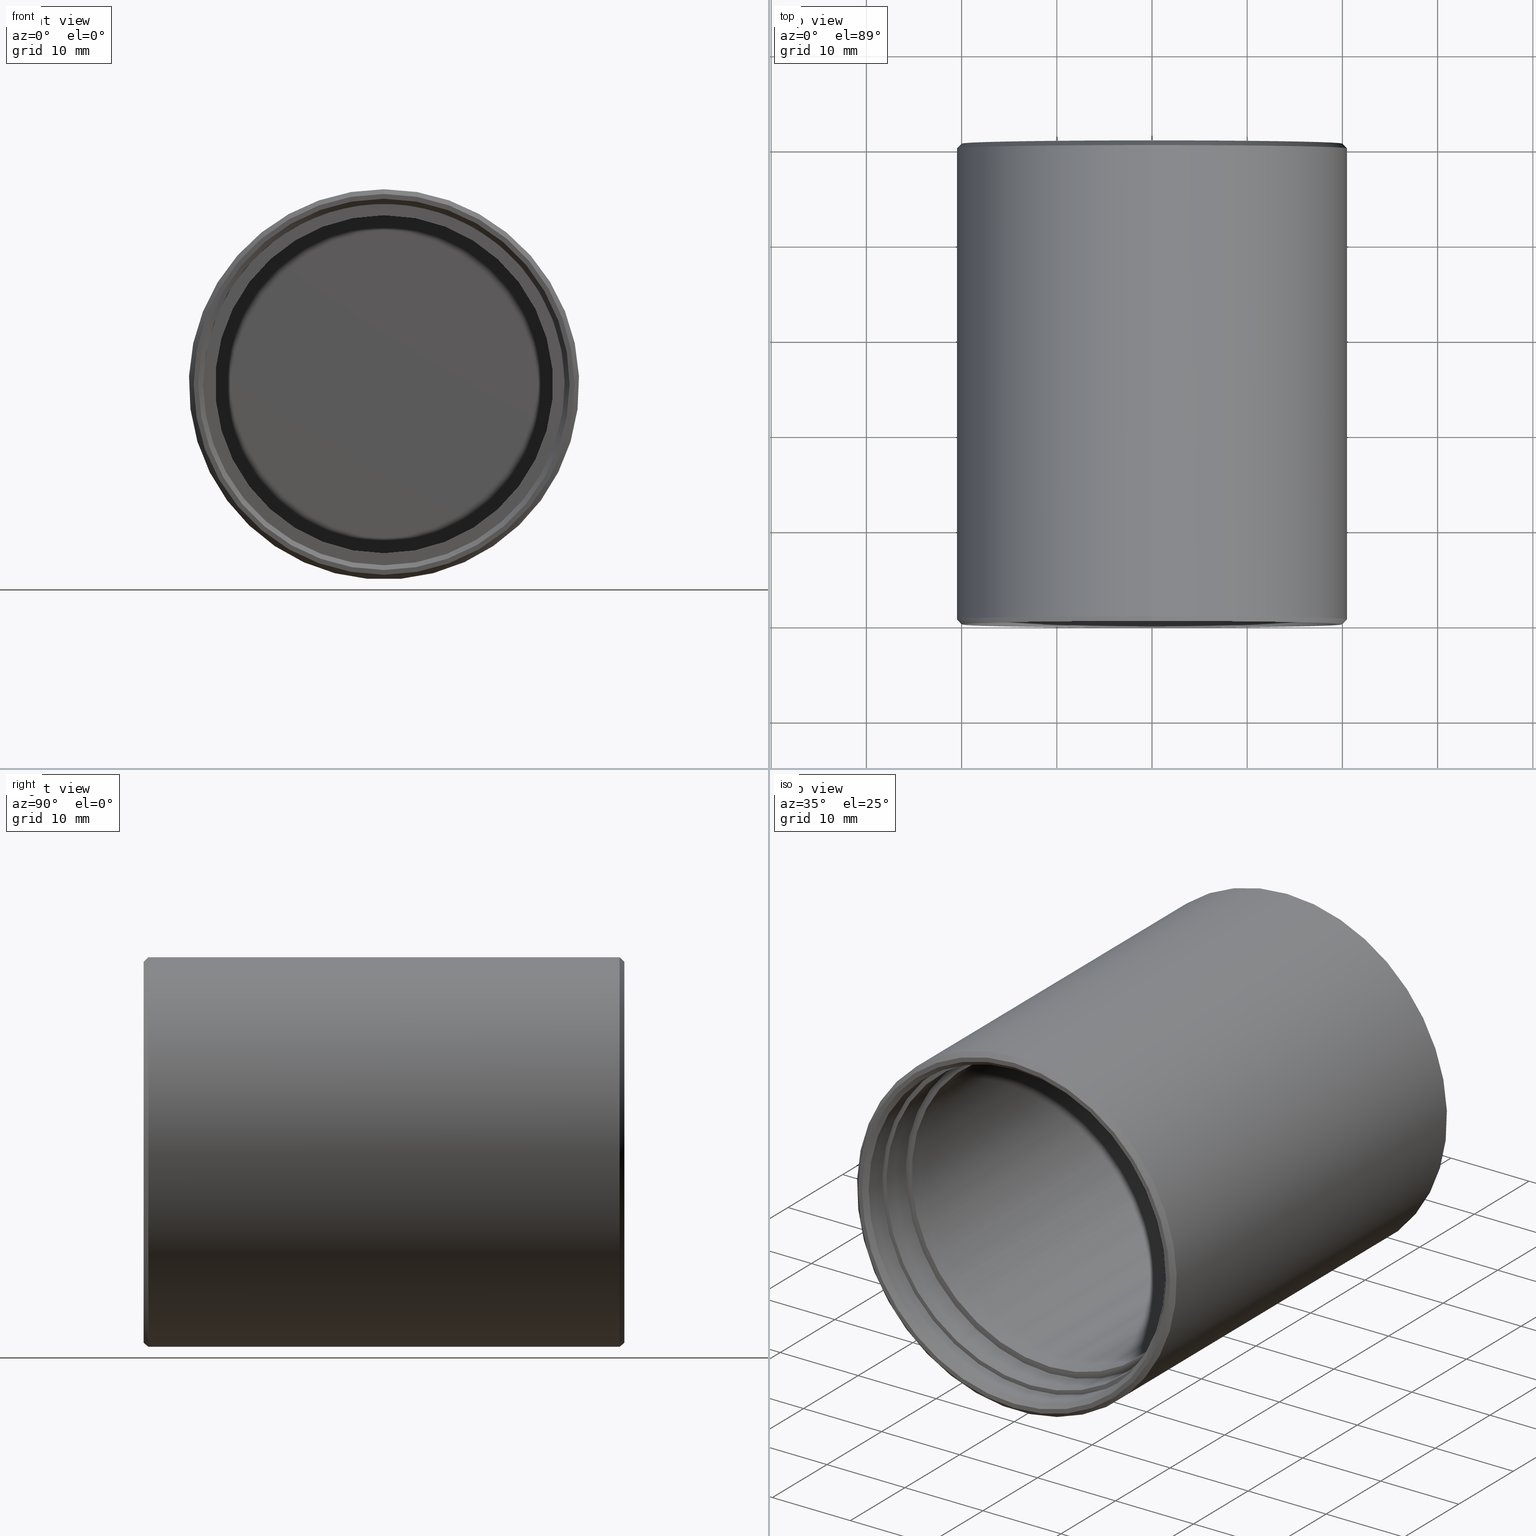
[diagram: canonical four-view strip — front | top / right | iso, engineering-drawing reading convention]
A machine part, canonical four-view strip (front | top / right | iso — engineering-drawing reading convention). The complete STEP part file that produces these views, byte-faithful:
ISO-10303-21;
HEADER;
FILE_DESCRIPTION (( 'STEP AP203' ),
    '1' );
FILE_NAME ('670035.STEP',
    '2025-05-23T04:04:11',
    ( 'Windows User' ),
    ( 'P R C' ),
    'SwSTEP 2.0',
    'SolidWorks 2020',
    '' );
FILE_SCHEMA (( 'CONFIG_CONTROL_DESIGN' ));
ENDSEC;

DATA;
#1 = DIRECTION ( 'NONE',  ( 0.000000000000000000, 0.000000000000000000, 1.000000000000000000 ) ) ;
#2 = AXIS2_PLACEMENT_3D ( 'NONE', #28, #254, #369 ) ;
#3 = CIRCLE ( 'NONE', #204, 19.49999999999997513 ) ;
#4 = DIRECTION ( 'NONE',  ( -0.000000000000000000, 1.000000000000000000, -0.000000000000000000 ) ) ;
#5 = DIRECTION ( 'NONE',  ( 0.000000000000000000, 0.000000000000000000, 1.000000000000000000 ) ) ;
#6 = EDGE_CURVE ( 'NONE', #265, #265, #223, .T. ) ;
#7 = CARTESIAN_POINT ( 'NONE',  ( 0.000000000000000000, 50.50000000000000000, 0.000000000000000000 ) ) ;
#8 = DIRECTION ( 'NONE',  ( -0.000000000000000000, -1.000000000000000000, -0.000000000000000000 ) ) ;
#9 = VERTEX_POINT ( 'NONE', #155 ) ;
#10 = EDGE_CURVE ( 'NONE', #127, #127, #332, .T. ) ;
#11 =( LENGTH_UNIT ( ) NAMED_UNIT ( * ) SI_UNIT ( .MILLI., .METRE. ) );
#12 = DESIGN_CONTEXT ( 'detailed design', #174, 'design' ) ;
#13 = ORIENTED_EDGE ( 'NONE', *, *, #10, .T. ) ;
#14 = APPLICATION_PROTOCOL_DEFINITION ( 'international standard', 'config_control_design', 1994, #174 ) ;
#15 = EDGE_LOOP ( 'NONE', ( #330 ) ) ;
#16 = AXIS2_PLACEMENT_3D ( 'NONE', #253, #307, #219 ) ;
#17 = CARTESIAN_POINT ( 'NONE',  ( 0.000000000000000000, 50.50000000000000000, 19.42415911742159551 ) ) ;
#18 = PRODUCT_RELATED_PRODUCT_CATEGORY ( 'detail', '', ( #375 ) ) ;
#19 = CARTESIAN_POINT ( 'NONE',  ( 0.000000000000000000, 0.000000000000000000, 20.00000000000000355 ) ) ;
#20 = EDGE_LOOP ( 'NONE', ( #22 ) ) ;
#21 = DATE_AND_TIME ( #24, #115 ) ;
#22 = ORIENTED_EDGE ( 'NONE', *, *, #214, .T. ) ;
#23 = CIRCLE ( 'NONE', #324, 20.50000000000000000 ) ;
#24 = CALENDAR_DATE ( 2025, 23, 5 ) ;
#25 = CC_DESIGN_DATE_AND_TIME_ASSIGNMENT ( #21, #228, ( #68 ) ) ;
#26 = PLANE ( 'NONE',  #203 ) ;
#27 = CALENDAR_DATE ( 2025, 23, 5 ) ;
#28 = CARTESIAN_POINT ( 'NONE',  ( 0.000000000000000000, 46.48000000000000398, 0.000000000000000000 ) ) ;
#29 = DIRECTION ( 'NONE',  ( 0.000000000000000000, -1.000000000000000000, 0.000000000000000000 ) ) ;
#30 = CIRCLE ( 'NONE', #264, 18.50000000000000000 ) ;
#31 = AXIS2_PLACEMENT_3D ( 'NONE', #124, #205, #151 ) ;
#32 = CARTESIAN_POINT ( 'NONE',  ( 0.000000000000000000, 3.000000000000000000, 0.000000000000000000 ) ) ;
#33 = FACE_BOUND ( 'NONE', #334, .T. ) ;
#34 = CYLINDRICAL_SURFACE ( 'NONE', #240, 17.74999999999999645 ) ;
#35 = AXIS2_PLACEMENT_3D ( 'NONE', #224, #340, #86 ) ;
#36 = CARTESIAN_POINT ( 'NONE',  ( 0.000000000000000000, 0.5000000000000004441, 0.000000000000000000 ) ) ;
#37 = ADVANCED_FACE ( 'NONE', ( #81, #285 ), #145, .T. ) ;
#38 = CARTESIAN_POINT ( 'NONE',  ( 0.000000000000000000, 0.4999999999999831246, 0.000000000000000000 ) ) ;
#39 = DIRECTION ( 'NONE',  ( 0.000000000000000000, 0.000000000000000000, -1.000000000000000000 ) ) ;
#40 = ADVANCED_FACE ( 'NONE', ( #33, #192 ), #194, .T. ) ;
#41 = DIRECTION ( 'NONE',  ( 0.000000000000000000, 0.000000000000000000, 1.000000000000000000 ) ) ;
#42 = LOCAL_TIME ( 12, 4, 11.00000000000000000, #221 ) ;
#43 = CARTESIAN_POINT ( 'NONE',  ( 0.000000000000000000, 0.000000000000000000, 19.49999999999997513 ) ) ;
#44 = ORIENTED_EDGE ( 'NONE', *, *, #359, .T. ) ;
#45 = PERSON_AND_ORGANIZATION ( #263, #306 ) ;
#46 = ORIENTED_EDGE ( 'NONE', *, *, #6, .T. ) ;
#47 = APPLICATION_CONTEXT ( 'configuration controlled 3d designs of mechanical parts and assemblies' ) ;
#48 = CC_DESIGN_APPROVAL ( #220, ( #84 ) ) ;
#49 = VERTEX_POINT ( 'NONE', #245 ) ;
#50 = EDGE_LOOP ( 'NONE', ( #215 ) ) ;
#51 = SECURITY_CLASSIFICATION_LEVEL ( 'unclassified' ) ;
#52 = EDGE_LOOP ( 'NONE', ( #156 ) ) ;
#53 = EDGE_CURVE ( 'NONE', #362, #362, #278, .T. ) ;
#54 = DIRECTION ( 'NONE',  ( 0.000000000000000000, -0.000000000000000000, 1.000000000000000000 ) ) ;
#55 = AXIS2_PLACEMENT_3D ( 'NONE', #283, #29, #142 ) ;
#56 = DIRECTION ( 'NONE',  ( 0.000000000000000000, -1.000000000000000000, 0.000000000000000000 ) ) ;
#57 = CARTESIAN_POINT ( 'NONE',  ( 0.000000000000000000, 6.580000000000000959, 0.000000000000000000 ) ) ;
#58 = ADVANCED_FACE ( 'NONE', ( #90, #147 ), #311, .F. ) ;
#59 = CARTESIAN_POINT ( 'NONE',  ( 0.000000000000000000, 50.50000000000000000, 0.000000000000000000 ) ) ;
#60 = AXIS2_PLACEMENT_3D ( 'NONE', #59, #373, #117 ) ;
#61 = DIRECTION ( 'NONE',  ( 0.000000000000000000, 1.000000000000000000, 0.000000000000000000 ) ) ;
#62 = DIRECTION ( 'NONE',  ( 0.000000000000000000, 1.000000000000000000, 0.000000000000000000 ) ) ;
#63 = ADVANCED_FACE ( 'NONE', ( #280, #169 ), #26, .T. ) ;
#64 = DIRECTION ( 'NONE',  ( -0.000000000000000000, -1.000000000000000000, -0.000000000000000000 ) ) ;
#65 = CONICAL_SURFACE ( 'NONE', #258, 18.99999999999999645, 0.7853981633974447263 ) ;
#66 = FACE_OUTER_BOUND ( 'NONE', #106, .T. ) ;
#67 = DIRECTION ( 'NONE',  ( 0.000000000000000000, 0.000000000000000000, -1.000000000000000000 ) ) ;
#68 = PRODUCT_DEFINITION ( 'δ֪', '', #198, #12 ) ;
#69 = DIRECTION ( 'NONE',  ( 0.000000000000000000, -1.000000000000000000, 0.000000000000000000 ) ) ;
#70 = AXIS2_PLACEMENT_3D ( 'NONE', #110, #229, #139 ) ;
#71 = AXIS2_PLACEMENT_3D ( 'NONE', #36, #4, #262 ) ;
#72 = ORIENTED_EDGE ( 'NONE', *, *, #344, .T. ) ;
#73 = DIRECTION ( 'NONE',  ( 0.000000000000000000, 0.000000000000000000, -1.000000000000000000 ) ) ;
#74 = EDGE_LOOP ( 'NONE', ( #299 ) ) ;
#75 = EDGE_CURVE ( 'NONE', #49, #49, #97, .T. ) ;
#76 = ORIENTED_EDGE ( 'NONE', *, *, #344, .F. ) ;
#77 = VERTEX_POINT ( 'NONE', #301 ) ;
#78 = EDGE_LOOP ( 'NONE', ( #361 ) ) ;
#79 = EDGE_LOOP ( 'NONE', ( #242 ) ) ;
#80 = APPROVAL ( #310, 'δָ��' ) ;
#81 = FACE_OUTER_BOUND ( 'NONE', #20, .T. ) ;
#82 = ORIENTED_EDGE ( 'NONE', *, *, #53, .T. ) ;
#83 = AXIS2_PLACEMENT_3D ( 'NONE', #113, #112, #222 ) ;
#84 = SECURITY_CLASSIFICATION ( '', '', #51 ) ;
#85 = COORDINATED_UNIVERSAL_TIME_OFFSET ( 8, 0, .AHEAD. ) ;
#86 = DIRECTION ( 'NONE',  ( 0.000000000000000000, 0.000000000000000000, -1.000000000000000000 ) ) ;
#87 = PERSON_AND_ORGANIZATION_ROLE ( 'classification_officer' ) ;
#88 = APPROVAL ( #241, 'δָ��' ) ;
#89 = CARTESIAN_POINT ( 'NONE',  ( 0.000000000000000000, 6.580000000000000959, 0.000000000000000000 ) ) ;
#90 = FACE_OUTER_BOUND ( 'NONE', #239, .T. ) ;
#91 = CIRCLE ( 'NONE', #83, 18.25000000000000000 ) ;
#92 = AXIS2_PLACEMENT_3D ( 'NONE', #291, #316, #1 ) ;
#93 = FACE_OUTER_BOUND ( 'NONE', #128, .T. ) ;
#94 = EDGE_CURVE ( 'NONE', #274, #274, #30, .T. ) ;
#95 = CARTESIAN_POINT ( 'NONE',  ( 0.000000000000000000, 3.000000000000000000, 0.000000000000000000 ) ) ;
#96 = DIRECTION ( 'NONE',  ( -0.000000000000000000, -1.000000000000000000, -0.000000000000000000 ) ) ;
#97 = CIRCLE ( 'NONE', #187, 18.99999999999999645 ) ;
#98 = DIRECTION ( 'NONE',  ( 0.000000000000000000, 0.000000000000000000, 1.000000000000000000 ) ) ;
#99 = DIRECTION ( 'NONE',  ( 0.000000000000000000, 0.000000000000000000, 1.000000000000000000 ) ) ;
#100 = VERTEX_POINT ( 'NONE', #238 ) ;
#101 = ORIENTED_EDGE ( 'NONE', *, *, #325, .T. ) ;
#102 = VERTEX_POINT ( 'NONE', #268 ) ;
#103 = EDGE_LOOP ( 'NONE', ( #157 ) ) ;
#104 = CC_DESIGN_PERSON_AND_ORGANIZATION_ASSIGNMENT ( #45, #279, ( #68 ) ) ;
#105 = APPROVAL_ROLE ( '' ) ;
#106 = EDGE_LOOP ( 'NONE', ( #101 ) ) ;
#107 = CARTESIAN_POINT ( 'NONE',  ( 0.000000000000000000, 50.00000000000000000, 20.50000000000000000 ) ) ;
#108 = EDGE_LOOP ( 'NONE', ( #371 ) ) ;
#109 = APPROVAL_STATUS ( 'not_yet_approved' ) ;
#110 = CARTESIAN_POINT ( 'NONE',  ( 0.000000000000000000, 50.50000000000000000, 0.000000000000000000 ) ) ;
#111 = CALENDAR_DATE ( 2025, 23, 5 ) ;
#112 = DIRECTION ( 'NONE',  ( -0.000000000000000000, -1.000000000000000000, -0.000000000000000000 ) ) ;
#113 = CARTESIAN_POINT ( 'NONE',  ( 0.000000000000000000, 49.48000000000000398, 0.000000000000000000 ) ) ;
#114 = AXIS2_PLACEMENT_3D ( 'NONE', #32, #197, #337 ) ;
#115 = LOCAL_TIME ( 12, 4, 11.00000000000000000, #135 ) ;
#116 = CC_DESIGN_DATE_AND_TIME_ASSIGNMENT ( #193, #366, ( #84 ) ) ;
#117 = DIRECTION ( 'NONE',  ( 0.000000000000000000, 0.000000000000000000, -1.000000000000000000 ) ) ;
#118 = DATE_AND_TIME ( #162, #356 ) ;
#119 = PLANE ( 'NONE',  #246 ) ;
#120 = CARTESIAN_POINT ( 'NONE',  ( 0.000000000000000000, 0.000000000000000000, 0.000000000000000000 ) ) ;
#121 = EDGE_CURVE ( 'NONE', #9, #9, #364, .T. ) ;
#122 = CIRCLE ( 'NONE', #313, 18.99999999999999645 ) ;
#123 = CARTESIAN_POINT ( 'NONE',  ( 0.000000000000000000, 50.50000000000000000, 0.000000000000000000 ) ) ;
#124 = CARTESIAN_POINT ( 'NONE',  ( 0.000000000000000000, 6.580000000000000959, 0.000000000000000000 ) ) ;
#125 = FACE_BOUND ( 'NONE', #273, .T. ) ;
#126 = FACE_BOUND ( 'NONE', #103, .T. ) ;
#127 = VERTEX_POINT ( 'NONE', #17 ) ;
#128 = EDGE_LOOP ( 'NONE', ( #44 ) ) ;
#129 = ADVANCED_FACE ( 'NONE', ( #374 ), #119, .T. ) ;
#130 = AXIS2_PLACEMENT_3D ( 'NONE', #305, #227, #54 ) ;
#131 = PERSON_AND_ORGANIZATION ( #263, #306 ) ;
#132 = VERTEX_POINT ( 'NONE', #107 ) ;
#133 = EDGE_LOOP ( 'NONE', ( #363 ) ) ;
#134 = CARTESIAN_POINT ( 'NONE',  ( 0.000000000000000000, 0.5000000000000004441, 20.50000000000000000 ) ) ;
#135 = COORDINATED_UNIVERSAL_TIME_OFFSET ( 8, 0, .AHEAD. ) ;
#136 = ORIENTED_EDGE ( 'NONE', *, *, #94, .F. ) ;
#137 = AXIS2_PLACEMENT_3D ( 'NONE', #7, #62, #41 ) ;
#138 = AXIS2_PLACEMENT_3D ( 'NONE', #352, #8, #99 ) ;
#139 = DIRECTION ( 'NONE',  ( 0.000000000000000000, 0.000000000000000000, 1.000000000000000000 ) ) ;
#140 = COORDINATED_UNIVERSAL_TIME_OFFSET ( 8, 0, .AHEAD. ) ;
#141 = DIRECTION ( 'NONE',  ( 0.000000000000000000, -1.000000000000000000, 0.000000000000000000 ) ) ;
#142 = DIRECTION ( 'NONE',  ( 0.000000000000000000, -0.000000000000000000, -1.000000000000000000 ) ) ;
#143 = ADVANCED_BREP_SHAPE_REPRESENTATION ( '670035', ( #272, #149 ), #154 ) ;
#144 = APPROVAL_DATE_TIME ( #118, #80 ) ;
#145 = CYLINDRICAL_SURFACE ( 'NONE', #60, 20.50000000000000000 ) ;
#146 = EDGE_CURVE ( 'NONE', #100, #100, #91, .T. ) ;
#147 = FACE_OUTER_BOUND ( 'NONE', #79, .T. ) ;
#148 = FACE_OUTER_BOUND ( 'NONE', #133, .T. ) ;
#149 = AXIS2_PLACEMENT_3D ( 'NONE', #208, #303, #322 ) ;
#150 = DIRECTION ( 'NONE',  ( 0.000000000000000000, 1.000000000000000000, 0.000000000000000000 ) ) ;
#151 = DIRECTION ( 'NONE',  ( 0.000000000000000000, 0.000000000000000000, -1.000000000000000000 ) ) ;
#152 = FACE_OUTER_BOUND ( 'NONE', #184, .T. ) ;
#153 = AXIS2_PLACEMENT_3D ( 'NONE', #342, #163, #343 ) ;
#154 =( GEOMETRIC_REPRESENTATION_CONTEXT ( 3 ) GLOBAL_UNCERTAINTY_ASSIGNED_CONTEXT ( ( #327 ) ) GLOBAL_UNIT_ASSIGNED_CONTEXT ( ( #11, #353, #190 ) ) REPRESENTATION_CONTEXT ( 'NONE', 'WORKASPACE' ) );
#155 = CARTESIAN_POINT ( 'NONE',  ( 0.000000000000000000, 46.48000000000000398, -17.74999999999999645 ) ) ;
#156 = ORIENTED_EDGE ( 'NONE', *, *, #121, .T. ) ;
#157 = ORIENTED_EDGE ( 'NONE', *, *, #180, .F. ) ;
#158 = LOCAL_TIME ( 12, 4, 11.00000000000000000, #140 ) ;
#159 = CARTESIAN_POINT ( 'NONE',  ( 0.000000000000000000, 3.000000000000000000, -18.50000000000000000 ) ) ;
#160 = PERSON_AND_ORGANIZATION ( #263, #306 ) ;
#161 = EDGE_LOOP ( 'NONE', ( #186 ) ) ;
#162 = CALENDAR_DATE ( 2025, 23, 5 ) ;
#163 = DIRECTION ( 'NONE',  ( -0.000000000000000000, 1.000000000000000000, -0.000000000000000000 ) ) ;
#164 = AXIS2_PLACEMENT_3D ( 'NONE', #95, #64, #175 ) ;
#165 = DIRECTION ( 'NONE',  ( 0.000000000000000000, 0.000000000000000000, -1.000000000000000000 ) ) ;
#166 = PERSON_AND_ORGANIZATION ( #263, #306 ) ;
#167 = PLANE ( 'NONE',  #55 ) ;
#168 = PERSON_AND_ORGANIZATION_ROLE ( 'design_supplier' ) ;
#169 = FACE_OUTER_BOUND ( 'NONE', #304, .T. ) ;
#170 = CC_DESIGN_APPROVAL ( #80, ( #198 ) ) ;
#171 = ADVANCED_FACE ( 'NONE', ( #281, #252 ), #257, .T. ) ;
#172 = DIRECTION ( 'NONE',  ( 0.000000000000000000, -0.000000000000000000, 1.000000000000000000 ) ) ;
#173 = DIRECTION ( 'NONE',  ( -0.000000000000000000, -1.000000000000000000, -0.000000000000000000 ) ) ;
#174 = APPLICATION_CONTEXT ( 'configuration controlled 3d designs of mechanical parts and assemblies' ) ;
#175 = DIRECTION ( 'NONE',  ( 0.000000000000000000, 0.000000000000000000, -1.000000000000000000 ) ) ;
#176 = FACE_OUTER_BOUND ( 'NONE', #217, .T. ) ;
#177 = ADVANCED_FACE ( 'NONE', ( #195, #309 ), #167, .T. ) ;
#178 = PLANE ( 'NONE',  #181 ) ;
#179 = CARTESIAN_POINT ( 'NONE',  ( 0.000000000000000000, 0.4999999999999831246, 0.000000000000000000 ) ) ;
#180 = EDGE_CURVE ( 'NONE', #183, #183, #216, .T. ) ;
#181 = AXIS2_PLACEMENT_3D ( 'NONE', #120, #259, #202 ) ;
#182 = EDGE_LOOP ( 'NONE', ( #72 ) ) ;
#183 = VERTEX_POINT ( 'NONE', #19 ) ;
#184 = EDGE_LOOP ( 'NONE', ( #46 ) ) ;
#185 = DATE_AND_TIME ( #329, #270 ) ;
#186 = ORIENTED_EDGE ( 'NONE', *, *, #325, .F. ) ;
#187 = AXIS2_PLACEMENT_3D ( 'NONE', #251, #141, #165 ) ;
#188 = CARTESIAN_POINT ( 'NONE',  ( 0.000000000000000000, 6.580000000000000959, -17.74999999999999645 ) ) ;
#189 = ORIENTED_EDGE ( 'NONE', *, *, #10, .F. ) ;
#190 =( NAMED_UNIT ( * ) SI_UNIT ( $, .STERADIAN. ) SOLID_ANGLE_UNIT ( ) );
#191 = APPROVAL_DATE_TIME ( #218, #220 ) ;
#192 = FACE_OUTER_BOUND ( 'NONE', #295, .T. ) ;
#193 = DATE_AND_TIME ( #111, #158 ) ;
#194 = PLANE ( 'NONE',  #130 ) ;
#195 = FACE_BOUND ( 'NONE', #15, .T. ) ;
#196 = DIRECTION ( 'NONE',  ( 0.000000000000000000, -0.000000000000000000, -1.000000000000000000 ) ) ;
#197 = DIRECTION ( 'NONE',  ( 0.000000000000000000, -1.000000000000000000, 0.000000000000000000 ) ) ;
#198 = PRODUCT_DEFINITION_FORMATION_WITH_SPECIFIED_SOURCE ( '�κ�', '', #375, .NOT_KNOWN. ) ;
#199 = DIRECTION ( 'NONE',  ( 0.000000000000000000, 0.000000000000000000, 1.000000000000000000 ) ) ;
#200 = FACE_OUTER_BOUND ( 'NONE', #108, .T. ) ;
#201 = CC_DESIGN_PERSON_AND_ORGANIZATION_ASSIGNMENT ( #250, #168, ( #198 ) ) ;
#202 = DIRECTION ( 'NONE',  ( 0.000000000000000000, -0.000000000000000000, 1.000000000000000000 ) ) ;
#203 = AXIS2_PLACEMENT_3D ( 'NONE', #57, #56, #196 ) ;
#204 = AXIS2_PLACEMENT_3D ( 'NONE', #288, #150, #5 ) ;
#205 = DIRECTION ( 'NONE',  ( 0.000000000000000000, -1.000000000000000000, 0.000000000000000000 ) ) ;
#206 = DIRECTION ( 'NONE',  ( -0.000000000000000000, 1.000000000000000000, -0.000000000000000000 ) ) ;
#207 = ADVANCED_FACE ( 'NONE', ( #349, #93 ), #34, .F. ) ;
#208 = CARTESIAN_POINT ( 'NONE',  ( 0.000000000000000000, 0.000000000000000000, 0.000000000000000000 ) ) ;
#209 = ORIENTED_EDGE ( 'NONE', *, *, #94, .T. ) ;
#210 = CLOSED_SHELL ( 'NONE', ( #37, #40, #248, #338, #177, #276, #63, #207, #58, #233, #370, #171, #269, #129, #315 ) ) ;
#211 = PERSON_AND_ORGANIZATION ( #263, #306 ) ;
#212 = COORDINATED_UNIVERSAL_TIME_OFFSET ( 8, 0, .AHEAD. ) ;
#213 = ORIENTED_EDGE ( 'NONE', *, *, #237, .F. ) ;
#214 = EDGE_CURVE ( 'NONE', #266, #266, #345, .T. ) ;
#215 = ORIENTED_EDGE ( 'NONE', *, *, #286, .T. ) ;
#216 = CIRCLE ( 'NONE', #138, 20.00000000000000355 ) ;
#217 = EDGE_LOOP ( 'NONE', ( #76 ) ) ;
#218 = DATE_AND_TIME ( #27, #42 ) ;
#219 = DIRECTION ( 'NONE',  ( 0.000000000000000000, 0.000000000000000000, -1.000000000000000000 ) ) ;
#220 = APPROVAL ( #109, 'δָ��' ) ;
#221 = COORDINATED_UNIVERSAL_TIME_OFFSET ( 8, 0, .AHEAD. ) ;
#222 = DIRECTION ( 'NONE',  ( 0.000000000000000000, 0.000000000000000000, 1.000000000000000000 ) ) ;
#223 = CIRCLE ( 'NONE', #114, 18.50000000000000000 ) ;
#224 = CARTESIAN_POINT ( 'NONE',  ( 0.000000000000000000, 50.50000000000000000, 0.000000000000000000 ) ) ;
#225 = AXIS2_PLACEMENT_3D ( 'NONE', #320, #173, #39 ) ;
#226 = APPROVAL_ROLE ( '' ) ;
#227 = DIRECTION ( 'NONE',  ( 0.000000000000000000, 1.000000000000000000, 0.000000000000000000 ) ) ;
#228 = DATE_TIME_ROLE ( 'creation_date' ) ;
#229 = DIRECTION ( 'NONE',  ( -0.000000000000000000, 1.000000000000000000, -0.000000000000000000 ) ) ;
#230 = PLANE ( 'NONE',  #231 ) ;
#231 = AXIS2_PLACEMENT_3D ( 'NONE', #350, #346, #318 ) ;
#232 = FACE_OUTER_BOUND ( 'NONE', #249, .T. ) ;
#233 = ADVANCED_FACE ( 'NONE', ( #126, #292 ), #347, .T. ) ;
#234 = CARTESIAN_POINT ( 'NONE',  ( 0.000000000000000000, 46.48000000000000398, 0.000000000000000000 ) ) ;
#235 = CYLINDRICAL_SURFACE ( 'NONE', #225, 18.50000000000000000 ) ;
#236 = FACE_BOUND ( 'NONE', #182, .T. ) ;
#237 = EDGE_CURVE ( 'NONE', #102, #102, #293, .T. ) ;
#238 = CARTESIAN_POINT ( 'NONE',  ( 0.000000000000000000, 49.48000000000000398, 18.25000000000000000 ) ) ;
#239 = EDGE_LOOP ( 'NONE', ( #82 ) ) ;
#240 = AXIS2_PLACEMENT_3D ( 'NONE', #234, #96, #67 ) ;
#241 = APPROVAL_STATUS ( 'not_yet_approved' ) ;
#242 = ORIENTED_EDGE ( 'NONE', *, *, #146, .T. ) ;
#243 = APPLICATION_PROTOCOL_DEFINITION ( 'international standard', 'config_control_design', 1994, #47 ) ;
#244 = ORIENTED_EDGE ( 'NONE', *, *, #53, .F. ) ;
#245 = CARTESIAN_POINT ( 'NONE',  ( 0.000000000000000000, 3.000000000000000000, -18.99999999999999645 ) ) ;
#246 = AXIS2_PLACEMENT_3D ( 'NONE', #312, #61, #172 ) ;
#247 = PERSON_AND_ORGANIZATION_ROLE ( 'creator' ) ;
#248 = ADVANCED_FACE ( 'NONE', ( #200, #236 ), #178, .F. ) ;
#249 = EDGE_LOOP ( 'NONE', ( #136 ) ) ;
#250 = PERSON_AND_ORGANIZATION ( #263, #306 ) ;
#251 = CARTESIAN_POINT ( 'NONE',  ( 0.000000000000000000, 3.000000000000000000, 0.000000000000000000 ) ) ;
#252 = FACE_BOUND ( 'NONE', #355, .T. ) ;
#253 = CARTESIAN_POINT ( 'NONE',  ( 0.000000000000000000, 64.48000000000000398, 0.000000000000000000 ) ) ;
#254 = DIRECTION ( 'NONE',  ( 0.000000000000000000, -1.000000000000000000, 0.000000000000000000 ) ) ;
#255 = FACE_OUTER_BOUND ( 'NONE', #328, .T. ) ;
#256 = DIRECTION ( 'NONE',  ( 0.000000000000000000, 0.000000000000000000, 1.000000000000000000 ) ) ;
#257 = CONICAL_SURFACE ( 'NONE', #35, 20.00000000000001776, 0.7853981633974309595 ) ;
#258 = AXIS2_PLACEMENT_3D ( 'NONE', #38, #260, #73 ) ;
#259 = DIRECTION ( 'NONE',  ( 0.000000000000000000, 1.000000000000000000, 0.000000000000000000 ) ) ;
#260 = DIRECTION ( 'NONE',  ( 0.000000000000000000, -1.000000000000000000, 0.000000000000000000 ) ) ;
#261 = CC_DESIGN_PERSON_AND_ORGANIZATION_ASSIGNMENT ( #282, #247, ( #198 ) ) ;
#262 = DIRECTION ( 'NONE',  ( 0.000000000000000000, 0.000000000000000000, 1.000000000000000000 ) ) ;
#263 = PERSON ( 'δָ��', 'δָ��', 'δָ��', ('δָ��'), ('δָ��'), ('δָ��') ) ;
#264 = AXIS2_PLACEMENT_3D ( 'NONE', #89, #284, #367 ) ;
#265 = VERTEX_POINT ( 'NONE', #159 ) ;
#266 = VERTEX_POINT ( 'NONE', #134 ) ;
#267 = EDGE_LOOP ( 'NONE', ( #336 ) ) ;
#268 = CARTESIAN_POINT ( 'NONE',  ( 0.000000000000000000, 50.50000000000000000, 20.00000000000001776 ) ) ;
#269 = ADVANCED_FACE ( 'NONE', ( #255, #125 ), #339, .F. ) ;
#270 = LOCAL_TIME ( 12, 4, 11.00000000000000000, #212 ) ;
#271 = CARTESIAN_POINT ( 'NONE',  ( 0.000000000000000000, 6.580000000000000959, -18.50000000000000000 ) ) ;
#272 = MANIFOLD_SOLID_BREP ( '͹̨-����2', #210 ) ;
#273 = EDGE_LOOP ( 'NONE', ( #244 ) ) ;
#274 = VERTEX_POINT ( 'NONE', #271 ) ;
#275 = ORIENTED_EDGE ( 'NONE', *, *, #214, .F. ) ;
#276 = ADVANCED_FACE ( 'NONE', ( #232, #152 ), #235, .F. ) ;
#277 = EDGE_LOOP ( 'NONE', ( #323 ) ) ;
#278 = CIRCLE ( 'NONE', #153, 18.25000000000000000 ) ;
#279 = PERSON_AND_ORGANIZATION_ROLE ( 'creator' ) ;
#280 = FACE_BOUND ( 'NONE', #297, .T. ) ;
#281 = FACE_OUTER_BOUND ( 'NONE', #277, .T. ) ;
#282 = PERSON_AND_ORGANIZATION ( #263, #306 ) ;
#283 = CARTESIAN_POINT ( 'NONE',  ( 0.000000000000000000, 3.000000000000000000, 0.000000000000000000 ) ) ;
#284 = DIRECTION ( 'NONE',  ( 0.000000000000000000, -1.000000000000000000, 0.000000000000000000 ) ) ;
#285 = FACE_OUTER_BOUND ( 'NONE', #50, .T. ) ;
#286 = EDGE_CURVE ( 'NONE', #132, #132, #23, .T. ) ;
#287 = DIRECTION ( 'NONE',  ( 0.000000000000000000, -1.000000000000000000, 0.000000000000000000 ) ) ;
#288 = CARTESIAN_POINT ( 'NONE',  ( 0.000000000000000000, 0.000000000000000000, 0.000000000000000000 ) ) ;
#289 = APPROVAL_PERSON_ORGANIZATION ( #160, #220, #226 ) ;
#290 = FACE_BOUND ( 'NONE', #161, .T. ) ;
#291 = CARTESIAN_POINT ( 'NONE',  ( 0.000000000000000000, 0.5000000000000004441, 0.000000000000000000 ) ) ;
#292 = FACE_OUTER_BOUND ( 'NONE', #331, .T. ) ;
#293 = CIRCLE ( 'NONE', #137, 20.00000000000001776 ) ;
#294 = MECHANICAL_CONTEXT ( 'NONE', #47, 'mechanical' ) ;
#295 = EDGE_LOOP ( 'NONE', ( #302 ) ) ;
#296 = VERTEX_POINT ( 'NONE', #188 ) ;
#297 = EDGE_LOOP ( 'NONE', ( #358 ) ) ;
#298 = APPROVAL_DATE_TIME ( #185, #88 ) ;
#299 = ORIENTED_EDGE ( 'NONE', *, *, #146, .F. ) ;
#300 = CC_DESIGN_APPROVAL ( #88, ( #68 ) ) ;
#301 = CARTESIAN_POINT ( 'NONE',  ( 0.000000000000000000, 0.4999999999999831246, 18.99999999999999645 ) ) ;
#302 = ORIENTED_EDGE ( 'NONE', *, *, #237, .T. ) ;
#303 = DIRECTION ( 'NONE',  ( 0.000000000000000000, 0.000000000000000000, 1.000000000000000000 ) ) ;
#304 = EDGE_LOOP ( 'NONE', ( #209 ) ) ;
#305 = CARTESIAN_POINT ( 'NONE',  ( 0.000000000000000000, 50.50000000000000000, 0.000000000000000000 ) ) ;
#306 = ORGANIZATION ( 'δָ��', 'δָ��', '' ) ;
#307 = DIRECTION ( 'NONE',  ( -0.000000000000000000, -1.000000000000000000, -0.000000000000000000 ) ) ;
#308 = CC_DESIGN_PERSON_AND_ORGANIZATION_ASSIGNMENT ( #211, #326, ( #375 ) ) ;
#309 = FACE_OUTER_BOUND ( 'NONE', #78, .T. ) ;
#310 = APPROVAL_STATUS ( 'not_yet_approved' ) ;
#311 = CYLINDRICAL_SURFACE ( 'NONE', #16, 18.25000000000000000 ) ;
#312 = CARTESIAN_POINT ( 'NONE',  ( 0.000000000000000000, 49.48000000000000398, 0.000000000000000000 ) ) ;
#313 = AXIS2_PLACEMENT_3D ( 'NONE', #179, #287, #98 ) ;
#314 = PRODUCT_DEFINITION_SHAPE ( 'NONE', 'NONE',  #68 ) ;
#315 = ADVANCED_FACE ( 'NONE', ( #321 ), #230, .F. ) ;
#316 = DIRECTION ( 'NONE',  ( -0.000000000000000000, 1.000000000000000000, -0.000000000000000000 ) ) ;
#317 = CARTESIAN_POINT ( 'NONE',  ( 0.000000000000000000, 50.00000000000000000, 0.000000000000000000 ) ) ;
#318 = DIRECTION ( 'NONE',  ( 0.000000000000000000, -0.000000000000000000, 1.000000000000000000 ) ) ;
#319 = APPROVAL_PERSON_ORGANIZATION ( #166, #80, #368 ) ;
#320 = CARTESIAN_POINT ( 'NONE',  ( 0.000000000000000000, 6.580000000000000959, 0.000000000000000000 ) ) ;
#321 = FACE_OUTER_BOUND ( 'NONE', #52, .T. ) ;
#322 = DIRECTION ( 'NONE',  ( 1.000000000000000000, 0.000000000000000000, 0.000000000000000000 ) ) ;
#323 = ORIENTED_EDGE ( 'NONE', *, *, #286, .F. ) ;
#324 = AXIS2_PLACEMENT_3D ( 'NONE', #317, #69, #256 ) ;
#325 = EDGE_CURVE ( 'NONE', #77, #77, #122, .T. ) ;
#326 = PERSON_AND_ORGANIZATION_ROLE ( 'design_owner' ) ;
#327 = UNCERTAINTY_MEASURE_WITH_UNIT (LENGTH_MEASURE( 1.000000000000000082E-05 ), #11, 'distance_accuracy_value', 'NONE');
#328 = EDGE_LOOP ( 'NONE', ( #13 ) ) ;
#329 = CALENDAR_DATE ( 2025, 23, 5 ) ;
#330 = ORIENTED_EDGE ( 'NONE', *, *, #6, .F. ) ;
#331 = EDGE_LOOP ( 'NONE', ( #275 ) ) ;
#332 = CIRCLE ( 'NONE', #70, 19.42415911742159551 ) ;
#333 = AXIS2_PLACEMENT_3D ( 'NONE', #123, #206, #199 ) ;
#334 = EDGE_LOOP ( 'NONE', ( #189 ) ) ;
#335 = SHAPE_DEFINITION_REPRESENTATION ( #314, #143 ) ;
#336 = ORIENTED_EDGE ( 'NONE', *, *, #121, .F. ) ;
#337 = DIRECTION ( 'NONE',  ( 0.000000000000000000, 0.000000000000000000, -1.000000000000000000 ) ) ;
#338 = ADVANCED_FACE ( 'NONE', ( #66, #148 ), #348, .F. ) ;
#339 = CONICAL_SURFACE ( 'NONE', #333, 19.42415911742159551, 1.027321548206929558 ) ;
#340 = DIRECTION ( 'NONE',  ( 0.000000000000000000, -1.000000000000000000, 0.000000000000000000 ) ) ;
#341 = PERSON_AND_ORGANIZATION ( #263, #306 ) ;
#342 = CARTESIAN_POINT ( 'NONE',  ( 0.000000000000000000, 49.79061671342109463, 0.000000000000000000 ) ) ;
#343 = DIRECTION ( 'NONE',  ( 0.000000000000000000, 0.000000000000000000, 1.000000000000000000 ) ) ;
#344 = EDGE_CURVE ( 'NONE', #357, #357, #3, .T. ) ;
#345 = CIRCLE ( 'NONE', #71, 20.50000000000000000 ) ;
#346 = DIRECTION ( 'NONE',  ( 0.000000000000000000, 1.000000000000000000, 0.000000000000000000 ) ) ;
#347 = CONICAL_SURFACE ( 'NONE', #92, 20.50000000000000000, 0.7853981633974447263 ) ;
#348 = CYLINDRICAL_SURFACE ( 'NONE', #164, 18.99999999999999645 ) ;
#349 = FACE_OUTER_BOUND ( 'NONE', #267, .T. ) ;
#350 = CARTESIAN_POINT ( 'NONE',  ( 0.000000000000000000, 46.48000000000000398, 0.000000000000000000 ) ) ;
#351 = CIRCLE ( 'NONE', #31, 17.74999999999999645 ) ;
#352 = CARTESIAN_POINT ( 'NONE',  ( 0.000000000000000000, 0.000000000000000000, 0.000000000000000000 ) ) ;
#353 =( NAMED_UNIT ( * ) PLANE_ANGLE_UNIT ( ) SI_UNIT ( $, .RADIAN. ) );
#354 = CC_DESIGN_PERSON_AND_ORGANIZATION_ASSIGNMENT ( #341, #87, ( #84 ) ) ;
#355 = EDGE_LOOP ( 'NONE', ( #213 ) ) ;
#356 = LOCAL_TIME ( 12, 4, 11.00000000000000000, #85 ) ;
#357 = VERTEX_POINT ( 'NONE', #43 ) ;
#358 = ORIENTED_EDGE ( 'NONE', *, *, #359, .F. ) ;
#359 = EDGE_CURVE ( 'NONE', #296, #296, #351, .T. ) ;
#360 = CARTESIAN_POINT ( 'NONE',  ( 0.000000000000000000, 49.79061671342109463, 18.25000000000000000 ) ) ;
#361 = ORIENTED_EDGE ( 'NONE', *, *, #75, .T. ) ;
#362 = VERTEX_POINT ( 'NONE', #360 ) ;
#363 = ORIENTED_EDGE ( 'NONE', *, *, #75, .F. ) ;
#364 = CIRCLE ( 'NONE', #2, 17.74999999999999645 ) ;
#365 = APPROVAL_PERSON_ORGANIZATION ( #131, #88, #105 ) ;
#366 = DATE_TIME_ROLE ( 'classification_date' ) ;
#367 = DIRECTION ( 'NONE',  ( 0.000000000000000000, 0.000000000000000000, -1.000000000000000000 ) ) ;
#368 = APPROVAL_ROLE ( '' ) ;
#369 = DIRECTION ( 'NONE',  ( 0.000000000000000000, 0.000000000000000000, -1.000000000000000000 ) ) ;
#370 = ADVANCED_FACE ( 'NONE', ( #176, #290 ), #65, .F. ) ;
#371 = ORIENTED_EDGE ( 'NONE', *, *, #180, .T. ) ;
#372 = CC_DESIGN_SECURITY_CLASSIFICATION ( #84, ( #198 ) ) ;
#373 = DIRECTION ( 'NONE',  ( -0.000000000000000000, -1.000000000000000000, -0.000000000000000000 ) ) ;
#374 = FACE_OUTER_BOUND ( 'NONE', #74, .T. ) ;
#375 = PRODUCT ( '670035', '670035', '', ( #294 ) ) ;
ENDSEC;
END-ISO-10303-21;
